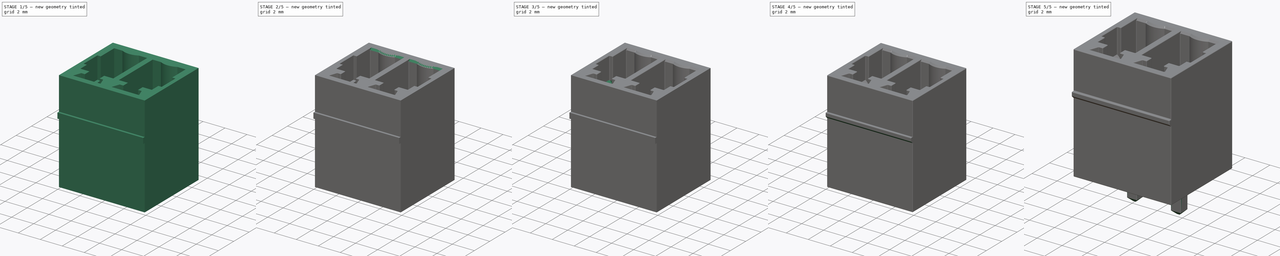
[diagram: build sequence overview — one tinted view per stage of 5, left to right]
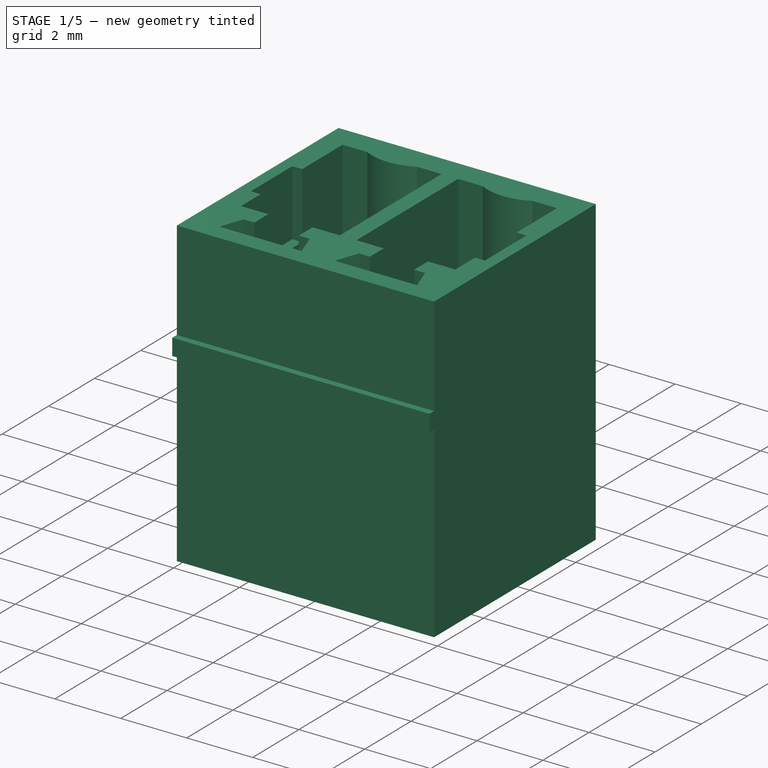
[diagram: stage 1 of 5 — iso view after this stage's code; geometry added in this stage tinted green]
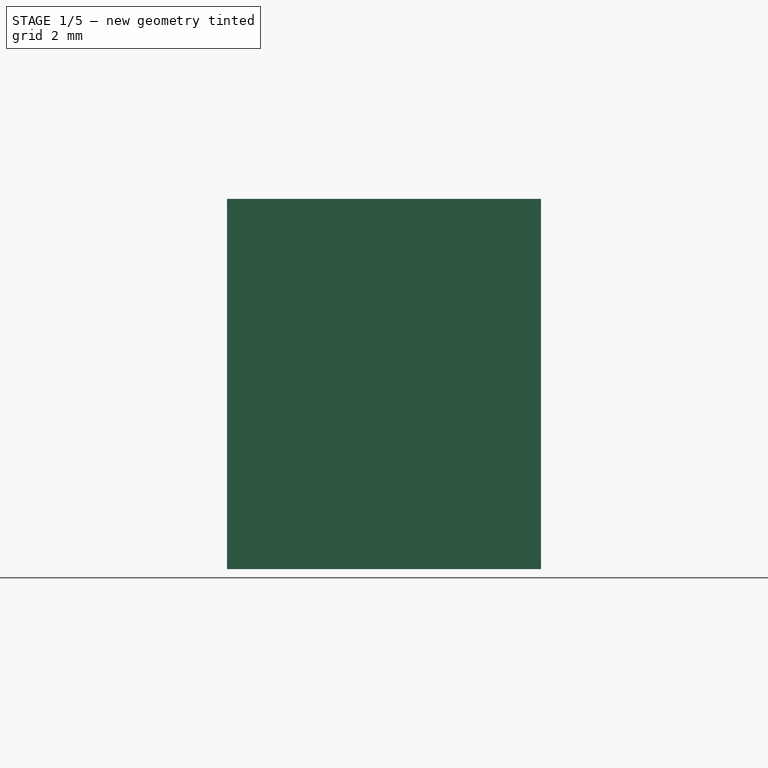
[diagram: stage 1 of 5 — front view after this stage's code; geometry added in this stage tinted green]
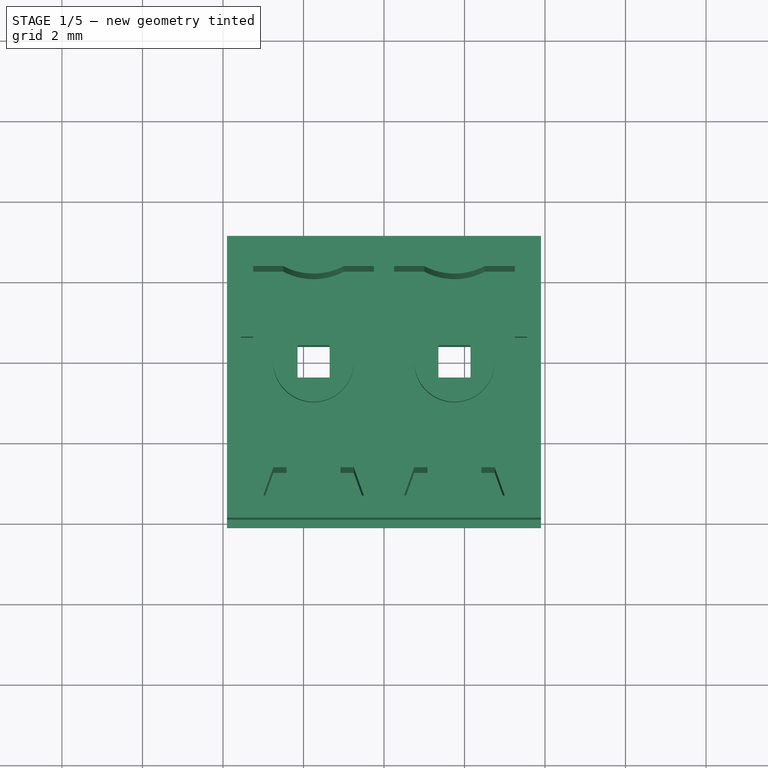
[diagram: stage 1 of 5 — top view after this stage's code; geometry added in this stage tinted green]
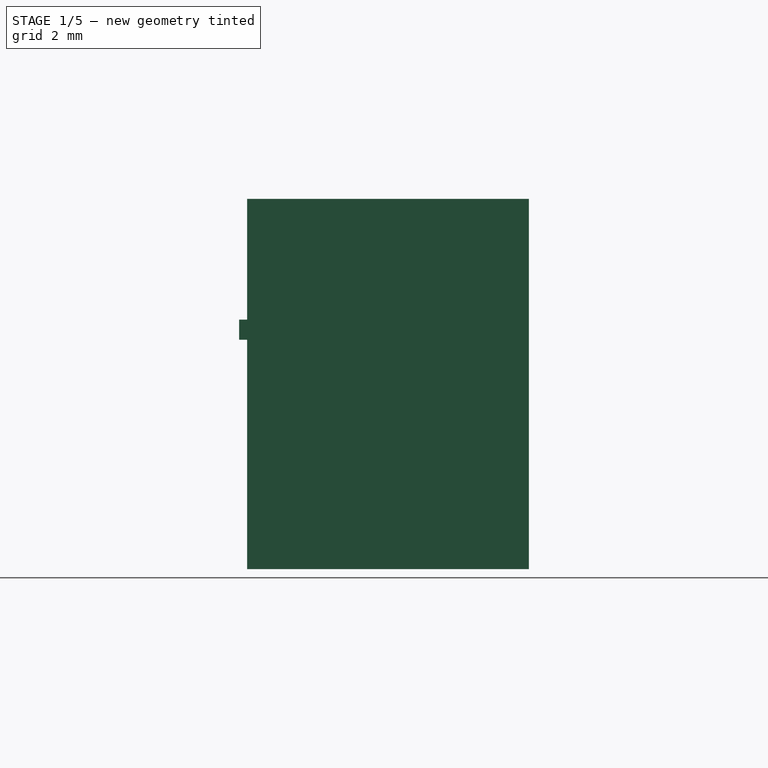
[diagram: stage 1 of 5 — right view after this stage's code; geometry added in this stage tinted green]
FCSTD DOCUMENT  (FreeCAD 0.15R4671 (Git))
Label: DEGSON_15EDGVC-3.5-03P-14-00A
License: All rights reserved
LicenseURL: http://en.wikipedia.org/wiki/All_rights_reserved
objects: PartDesign::Fillet×27, PartDesign::Chamfer×10, Sketcher::SketchObject×7, PartDesign::Pad×5, PartDesign::Pocket×2, PartDesign::LinearPattern×2, Image::ImagePlane×1, Part::Cut×1
note: 61 computed .brp shape members not serialized (recipe doc carries the construction recipe); baked Part::Feature solids carry a one-line shape summary decoded from their .brp

FEATURE [Sketcher::SketchObject] Sketch001
  Placement = pos=(0,0,0) rot=(1,0,0;3.14159rad)
  sketch-geometry (4):
    g0: LineSegment StartX=-3.9 StartY=4 StartZ=0 EndX=3.9 EndY=4 EndZ=0
    g1: LineSegment StartX=3.9 StartY=4 StartZ=0 EndX=3.9 EndY=-3 EndZ=0
    g2: LineSegment StartX=3.9 StartY=-3 StartZ=0 EndX=-3.9 EndY=-3 EndZ=0
    g3: LineSegment StartX=-3.9 StartY=-3 StartZ=0 EndX=-3.9 EndY=4 EndZ=0
  constraints (12):
    c: Coincident(g0,g1)
    c: Coincident(g1,g2)
    c: Coincident(g2,g3)
    c: Coincident(g3,g0)
    c: Horizontal(g0)
    c: Horizontal(g2)
    c: Vertical(g1)
    c: Vertical(g3)
    c: DistanceY(g3) = 7
    c: DistanceY(g-1,g2) = -3
    c: DistanceX(g0) = 7.8
    c: DistanceX(g-1,g0) = -3.9
FEATURE [PartDesign::Pad] Pad001
  Length = 9.2
  Length2 = 100
  Placement = pos=(0,0,0) rot=(1,0,0;3.14159rad)
  Sketch = -> Sketch001
  Type = 0
FEATURE [Sketcher::SketchObject] Sketch002
  Support = -> Pad001 [Face5]
  sketch-geometry (14):
    g0: LineSegment StartX=-0.25 StartY=2.25 StartZ=0 EndX=-1 EndY=2.25 EndZ=0
    g1: LineSegment StartX=-2.5 StartY=2.25 StartZ=0 EndX=-3.25 EndY=2.25 EndZ=0
    g2: LineSegment StartX=-3.25 StartY=2.25 StartZ=0 EndX=-3.25 EndY=-2.15 EndZ=0
    g3: LineSegment StartX=-3.25 StartY=-2.15 StartZ=0 EndX=-2.42 EndY=-2.15 EndZ=0
    g4: LineSegment StartX=-2.42 StartY=-2.15 StartZ=0 EndX=-2.42 EndY=-2.75 EndZ=0
    g5: LineSegment StartX=-2.42 StartY=-2.75 StartZ=0 EndX=-2.75 EndY=-2.75 EndZ=0
    g6: LineSegment StartX=-2.75 StartY=-2.75 StartZ=0 EndX=-3 EndY=-3.45 EndZ=0
    g7: LineSegment StartX=-3 StartY=-3.45 StartZ=0 EndX=-0.5 EndY=-3.45 EndZ=0
    g8: LineSegment StartX=-0.5 StartY=-3.45 StartZ=0 EndX=-0.75 EndY=-2.75 EndZ=0
    g9: LineSegment StartX=-0.75 StartY=-2.75 StartZ=0 EndX=-1.08 EndY=-2.75 EndZ=0
    g10: LineSegment StartX=-1.08 StartY=-2.75 StartZ=0 EndX=-1.08 EndY=-2.15 EndZ=0
    g11: LineSegment StartX=-1.08 StartY=-2.15 StartZ=0 EndX=-0.25 EndY=-2.15 EndZ=0
    g12: LineSegment StartX=-0.25 StartY=-2.15 StartZ=0 EndX=-0.25 EndY=2.25 EndZ=0
    g13: ArcOfCircle CenterX=-1.75 CenterY=3.66333 CenterZ=0 NormalX=0 NormalY=0 NormalZ=1 Radius=1.6 StartAngle=4.22451 EndAngle=5.20026
  constraints (43):
    c: Horizontal(g0)
    c: Horizontal(g1)
    c: Equal(g1,g0)
    c: Coincident(g1,g2)
    c: Vertical(g2)
    c: Coincident(g2,g3)
    c: Horizontal(g3)
    c: Coincident(g3,g4)
    c: Vertical(g4)
    c: Coincident(g4,g5)
    c: Horizontal(g5)
    c: Coincident(g5,g6)
    c: Coincident(g6,g7)
    c: Horizontal(g7)
    c: Coincident(g8,g9)
    c: Horizontal(g9)
    c: Coincident(g9,g10)
    c: Vertical(g10)
    c: Coincident(g10,g11)
    c: Horizontal(g11)
    c: Coincident(g11,g12)
    c: Vertical(g12)
    c: Coincident(g0,g12)
    c: Equal(g11,g3)
    c: Equal(g2,g12)
    c: Equal(g10,g4)
    c: Equal(g5,g9)
    c: Coincident(g8,g7)
    c: Coincident(g13,g0)
    c: Coincident(g13,g1)
    c: DistanceX(g5,g8) = 2
    c: DistanceX(g7) = 2.5
    c: DistanceY(g6,g5) = 0.7
    c: DistanceX(g5) = -0.33
    c: DistanceY(g-1,g6) = -3.45
    c: DistanceX(g2,g11) = 3
    c: DistanceY(g2) = -4.4
    c: Radius(g13) = 1.6
    c: DistanceY(g4) = -0.6
    c: DistanceY(g-1,g0) = 2.25
    c: DistanceX(g0,g1) = -1.5
    c: Angle(g7,g6) = 1.22777
    c: DistanceX(g-1,g13) = -1.75
FEATURE [Image::ImagePlane] ImagePlane
  Placement = pos=(0,-0.55,0) rot=(0,0,1;0rad)
  XSize = 11.3
  YSize = 7
FEATURE [PartDesign::Pocket] Pocket
  Length = 8
  Placement = pos=(0,0,0) rot=(1,0,0;3.14159rad)
  Sketch = -> Sketch002
  Type = 0
FEATURE [PartDesign::LinearPattern] LinearPattern
  Direction = -> Sketch002 [H_Axis]
  Length = 3.5
  Occurrences = 2
  Originals = -> [Pocket]
  Placement = pos=(0,0,0) rot=(1,0,0;3.14159rad)
FEATURE [Sketcher::SketchObject] Sketch003
  Support = -> LinearPattern [Face4]
  sketch-geometry (8):
    g0: LineSegment StartX=-2.25 StartY=0.5 StartZ=0 EndX=-3.55 EndY=0.5 EndZ=0
    g1: LineSegment StartX=-3.55 StartY=0.5 StartZ=0 EndX=-3.55 EndY=-1.3 EndZ=0
    g2: LineSegment StartX=-3.55 StartY=-1.3 StartZ=0 EndX=-2.25 EndY=-1.3 EndZ=0
    g3: LineSegment StartX=-2.25 StartY=-1.3 StartZ=0 EndX=-2.25 EndY=0.5 EndZ=0
    g4: LineSegment StartX=3.55 StartY=0.5 StartZ=0 EndX=2.25 EndY=0.5 EndZ=0
    g5: LineSegment StartX=2.25 StartY=0.5 StartZ=0 EndX=2.25 EndY=-1.3 EndZ=0
    g6: LineSegment StartX=2.25 StartY=-1.3 StartZ=0 EndX=3.55 EndY=-1.3 EndZ=0
    g7: LineSegment StartX=3.55 StartY=-1.3 StartZ=0 EndX=3.55 EndY=0.5 EndZ=0
  constraints (24):
    c: Coincident(g0,g1)
    c: Coincident(g1,g2)
    c: Coincident(g2,g3)
    c: Coincident(g3,g0)
    c: Horizontal(g0)
    c: Horizontal(g2)
    c: Vertical(g1)
    c: Vertical(g3)
    c: DistanceX(g2) = 1.3
    c: DistanceY(g1) = -1.8
    c: DistanceY(g-1,g0) = 0.5
    c: DistanceX(g-1,g2) = -2.25
    c: Coincident(g4,g5)
    c: Coincident(g5,g6)
    c: Coincident(g6,g7)
    c: Coincident(g7,g4)
    c: Horizontal(g4)
    c: Horizontal(g6)
    c: Vertical(g5)
    c: Vertical(g7)
    c: DistanceY(g-1,g4) = 0.5
    c: DistanceX(g-1,g5) = 2.25
    c: Equal(g4,g2)
    c: Equal(g7,g1)
FEATURE [PartDesign::Pocket] Pocket001
  Length = 2
  Placement = pos=(0,0,0) rot=(1,0,0;3.14159rad)
  Sketch = -> Sketch003
  Type = 0
FEATURE [Sketcher::SketchObject] Sketch005
  Placement = pos=(0,0,-8) rot=(0,0,1;0rad)
  Support = -> Pocket001 [Face41]
  sketch-geometry (1):
    g0: Circle CenterX=-1.75 CenterY=0 CenterZ=0 NormalX=0 NormalY=0 NormalZ=1 Radius=1
  constraints (3):
    c: PointOnObject(g0,g-1)
    c: DistanceX(g-1,g0) = -1.75
    c: Radius(g0) = 1
FEATURE [PartDesign::Pad] Pad003
  Length = 1.2
  Length2 = 100
  Placement = pos=(0,0,0) rot=(1,0,0;3.14159rad)
  Sketch = -> Sketch005
  Type = 0
FEATURE [PartDesign::LinearPattern] LinearPattern001
  Direction = -> Sketch005 [H_Axis]
  Length = 3.5
  Occurrences = 2
  Originals = -> [Pad003]
  Placement = pos=(0,0,0) rot=(1,0,0;3.14159rad)
FEATURE [Sketcher::SketchObject] Sketch006
  Placement = pos=(0,0,-1.5) rot=(1,0,0;3.14159rad)
  sketch-geometry (8):
    g0: LineSegment StartX=-2.15 StartY=0.4 StartZ=0 EndX=-1.35 EndY=0.4 EndZ=0
    g1: LineSegment StartX=-1.35 StartY=0.4 StartZ=0 EndX=-1.35 EndY=-0.4 EndZ=0
    g2: LineSegment StartX=-1.35 StartY=-0.4 StartZ=0 EndX=-2.15 EndY=-0.4 EndZ=0
    g3: LineSegment StartX=-2.15 StartY=-0.4 StartZ=0 EndX=-2.15 EndY=0.4 EndZ=0
    g4: LineSegment StartX=1.35 StartY=0.4 StartZ=0 EndX=2.15 EndY=0.4 EndZ=0
    g5: LineSegment StartX=2.15 StartY=0.4 StartZ=0 EndX=2.15 EndY=-0.4 EndZ=0
    g6: LineSegment StartX=2.15 StartY=-0.4 StartZ=0 EndX=1.35 EndY=-0.4 EndZ=0
    g7: LineSegment StartX=1.35 StartY=-0.4 StartZ=0 EndX=1.35 EndY=0.4 EndZ=0
  constraints (24):
    c: Coincident(g1,g2)
    c: Coincident(g2,g3)
    c: Coincident(g3,g0)
    c: Horizontal(g0)
    c: Horizontal(g2)
    c: Vertical(g3)
    c: Equal(g0,g1)
    c: DistanceX(g0) = 0.8
    c: Coincident(g0,g1)
    c: Vertical(g1)
    c: DistanceY(g-1,g0) = 0.4
    c: DistanceX(g-1,g1) = -1.35
    c: Coincident(g4,g5)
    c: Coincident(g5,g6)
    c: Coincident(g6,g7)
    c: Coincident(g7,g4)
    c: Horizontal(g4)
    c: Horizontal(g6)
    c: Vertical(g5)
    c: Vertical(g7)
    c: Equal(g4,g5)
    c: DistanceX(g4) = 0.8
    c: DistanceY(g-1,g4) = 0.4
    c: DistanceX(g6,g1) = -2.7
FEATURE [PartDesign::Pad] Pad004
  Length = 10.4
  Length2 = 100
  Placement = pos=(0,0,-1.5) rot=(1,0,0;3.14159rad)
  Sketch = -> Sketch006
  Type = 0
FEATURE [Part::Cut] Cut
  Base = -> LinearPattern001
  Tool = -> Pad004
FEATURE [Sketcher::SketchObject] Sketch007
  Placement = pos=(0,-4,0) rot=(1,0,0;1.5708rad)
  Support = -> Cut [Face1]
  sketch-geometry (4):
    g0: LineSegment StartX=-3.9 StartY=-3 StartZ=0 EndX=3.9 EndY=-3 EndZ=0
    g1: LineSegment StartX=3.9 StartY=-3 StartZ=0 EndX=3.9 EndY=-3.5 EndZ=0
    g2: LineSegment StartX=3.9 StartY=-3.5 StartZ=0 EndX=-3.9 EndY=-3.5 EndZ=0
    g3: LineSegment StartX=-3.9 StartY=-3.5 StartZ=0 EndX=-3.9 EndY=-3 EndZ=0
  constraints (12):
    c: Coincident(g0,g1)
    c: Coincident(g1,g2)
    c: Coincident(g2,g3)
    c: Coincident(g3,g0)
    c: Horizontal(g0)
    c: Horizontal(g2)
    c: Vertical(g1)
    c: Vertical(g3)
    c: DistanceX(g0) = 7.8
    c: Symmetric(g0,g0,g-2)
    c: DistanceY(g-1,g0) = -3
    c: DistanceY(g3) = 0.5
FEATURE [PartDesign::Pad] Pad005
  Length = 0.2
  Length2 = 100
  Sketch = -> Sketch007
  Type = 0
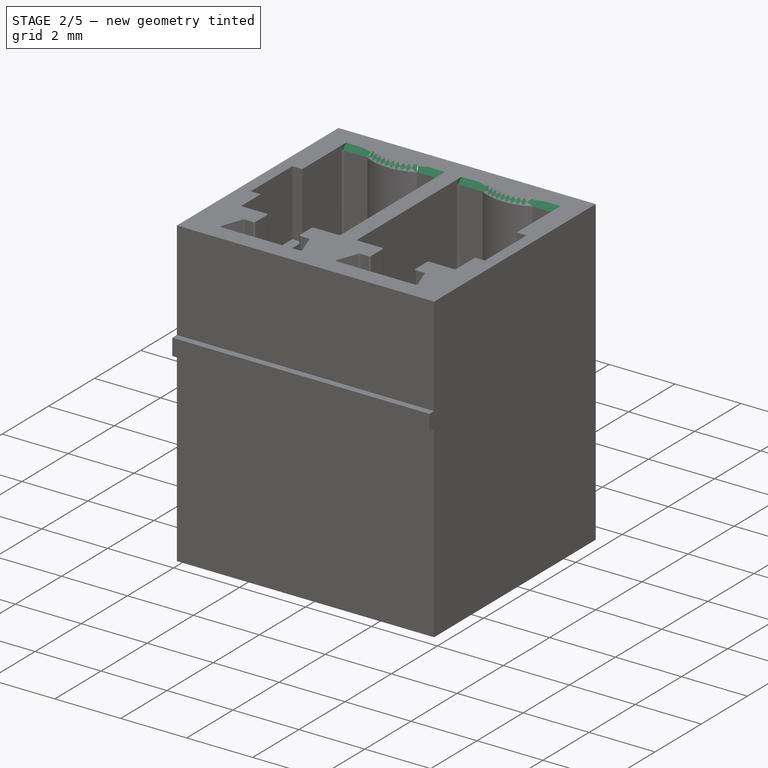
[diagram: stage 2 of 5 — iso view after this stage's code; geometry added in this stage tinted green]
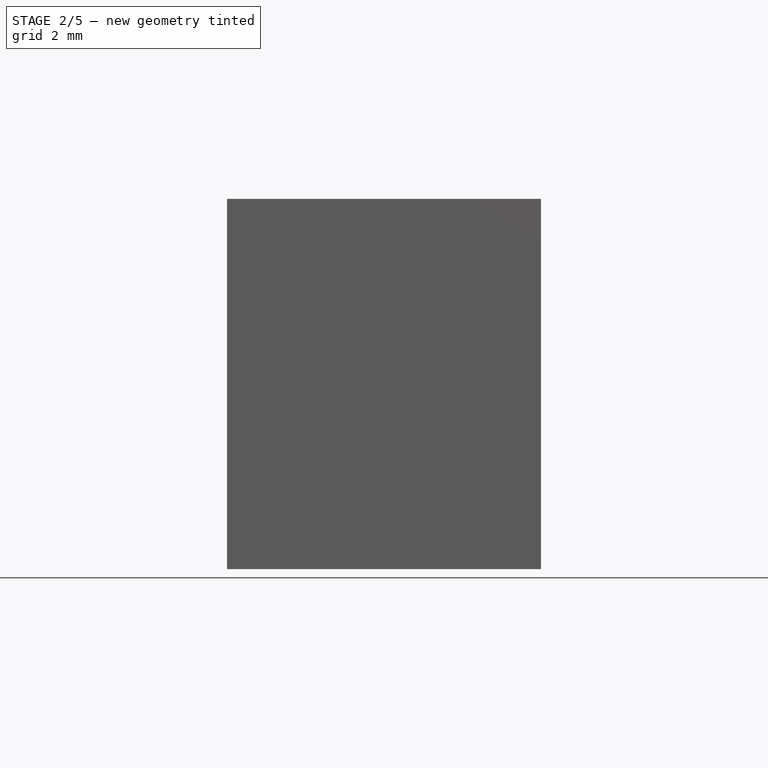
[diagram: stage 2 of 5 — front view after this stage's code; geometry added in this stage tinted green]
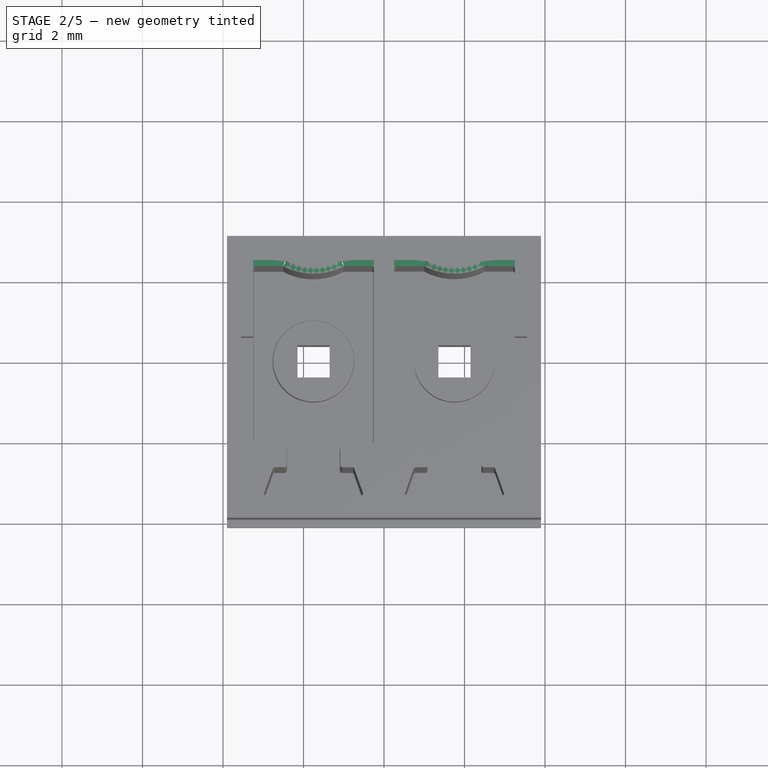
[diagram: stage 2 of 5 — top view after this stage's code; geometry added in this stage tinted green]
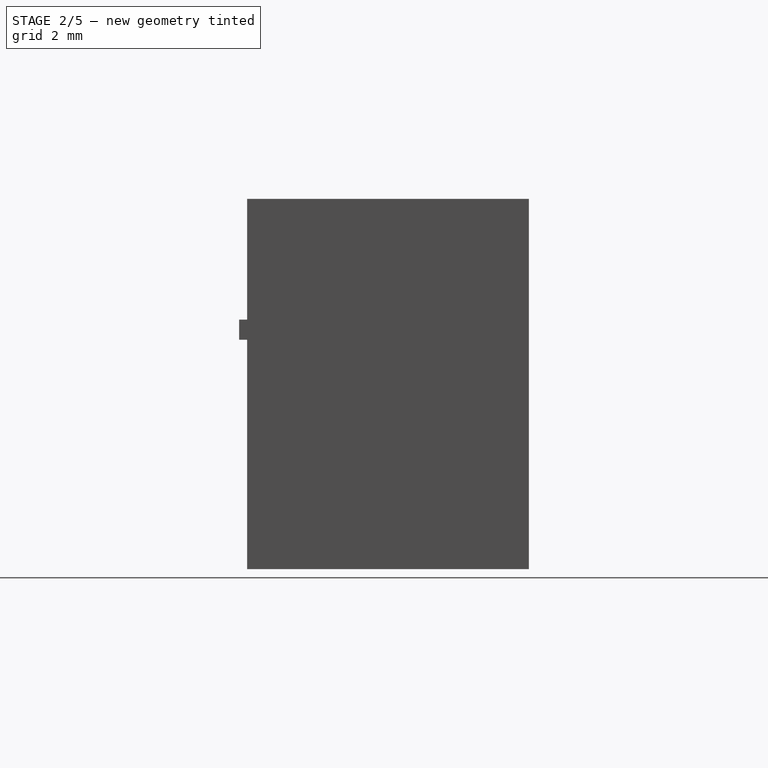
[diagram: stage 2 of 5 — right view after this stage's code; geometry added in this stage tinted green]
FEATURE [PartDesign::Chamfer] Chamfer004
  Base = -> Pad005 [Edge37,Edge21]
  Size = 0.15
FEATURE [PartDesign::Chamfer] Chamfer005
  Base = -> Chamfer004 [Edge44,Edge28]
  Size = 0.15
FEATURE [PartDesign::Chamfer] Chamfer006
  Base = -> Chamfer005 [Edge24,Edge2]
  Size = 0.15
FEATURE [PartDesign::Fillet] Fillet002
  Base = -> Chamfer006 [Edge59,Edge57,Edge73,Edge75]
  Radius = 0.05
FEATURE [PartDesign::Fillet] Fillet003
  Base = -> Fillet002 [Edge77,Edge75,Edge72,Edge67,Edge89,Edge86,Edge84,Edge79]
  Radius = 0.05
FEATURE [PartDesign::Fillet] Fillet004
  Base = -> Fillet003 [Edge149,Edge147,Edge161,Edge163]
  Radius = 0.05
FEATURE [PartDesign::Fillet] Fillet005
  Base = -> Fillet004 [Edge98,Edge96,Edge90,Edge87,Edge83,Edge80,Edge78,Edge72]
  Radius = 0.05
FEATURE [PartDesign::Fillet] Fillet006
  Base = -> Fillet005 [Edge146]
  Radius = 0.05
FEATURE [PartDesign::Fillet] Fillet007
  Base = -> Fillet006 [Edge89]
  Radius = 0.05
FEATURE [PartDesign::Fillet] Fillet008
  Base = -> Fillet007 [Edge21]
  Radius = 0.05
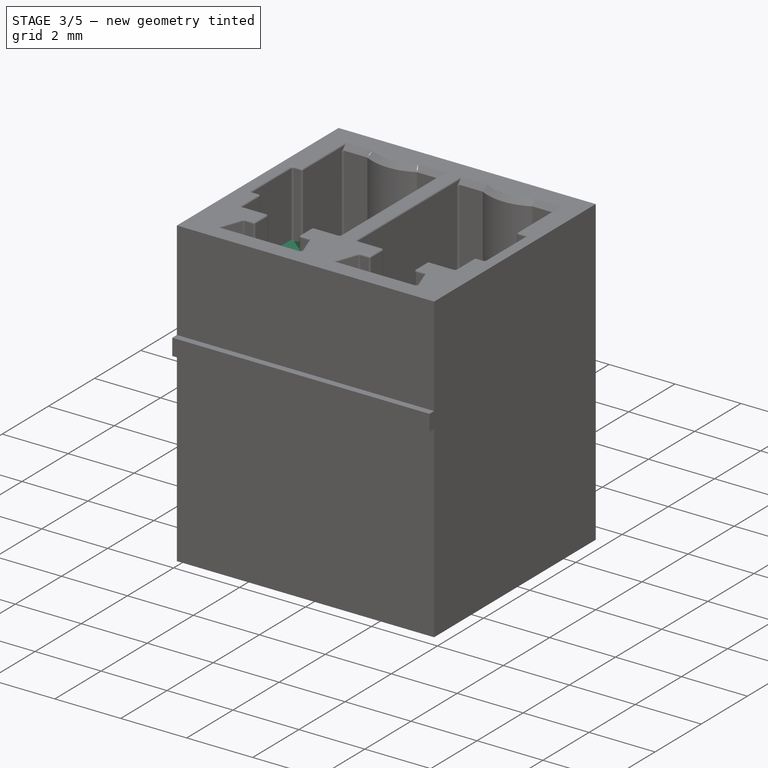
[diagram: stage 3 of 5 — iso view after this stage's code; geometry added in this stage tinted green]
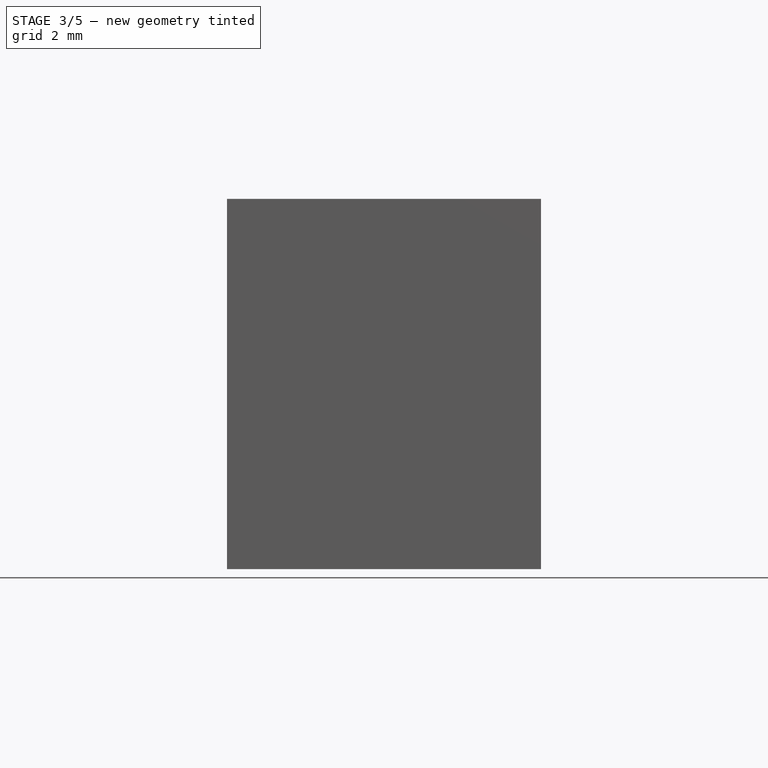
[diagram: stage 3 of 5 — front view after this stage's code; geometry added in this stage tinted green]
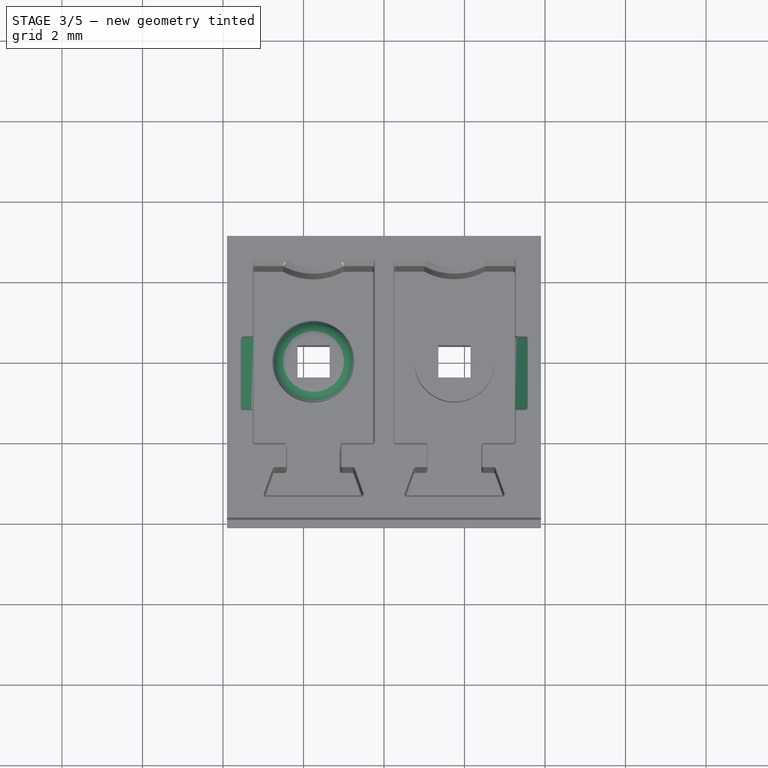
[diagram: stage 3 of 5 — top view after this stage's code; geometry added in this stage tinted green]
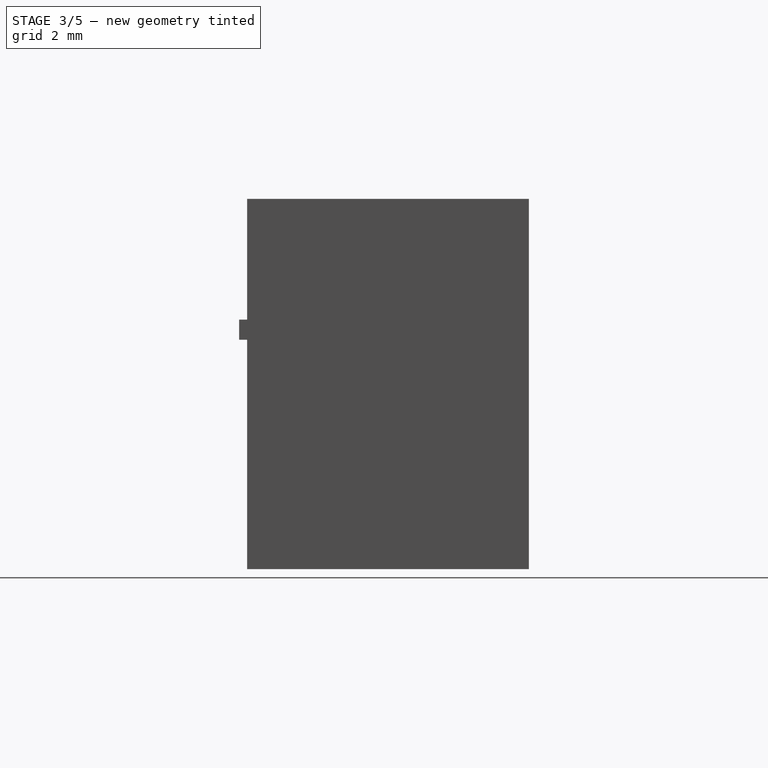
[diagram: stage 3 of 5 — right view after this stage's code; geometry added in this stage tinted green]
FEATURE [PartDesign::Fillet] Fillet009
  Base = -> Fillet008 [Edge75]
  Radius = 0.4
FEATURE [PartDesign::Chamfer] Chamfer007
  Base = -> Fillet009 [Edge117]
  Size = 0.299
FEATURE [PartDesign::Fillet] Fillet010
  Base = -> Chamfer007 [Edge7,Edge2]
  Radius = 0.05
FEATURE [PartDesign::Fillet] Fillet011
  Base = -> Fillet010 [Edge110,Edge113]
  Radius = 0.05
FEATURE [PartDesign::Fillet] Fillet012
  Base = -> Fillet011 [Edge32]
  Radius = 0.05
FEATURE [PartDesign::Chamfer] Chamfer008
  Base = -> Fillet012 [Edge195]
  Size = 0.299
FEATURE [PartDesign::Fillet] Fillet013
  Base = -> Chamfer008 [Edge2,Edge7]
  Radius = 0.05
FEATURE [PartDesign::Fillet] Fillet014
  Base = -> Fillet013 [Edge131,Edge130]
  Radius = 0.05
FEATURE [PartDesign::Fillet] Fillet015
  Base = -> Fillet014 [Edge25]
  Radius = 0.05
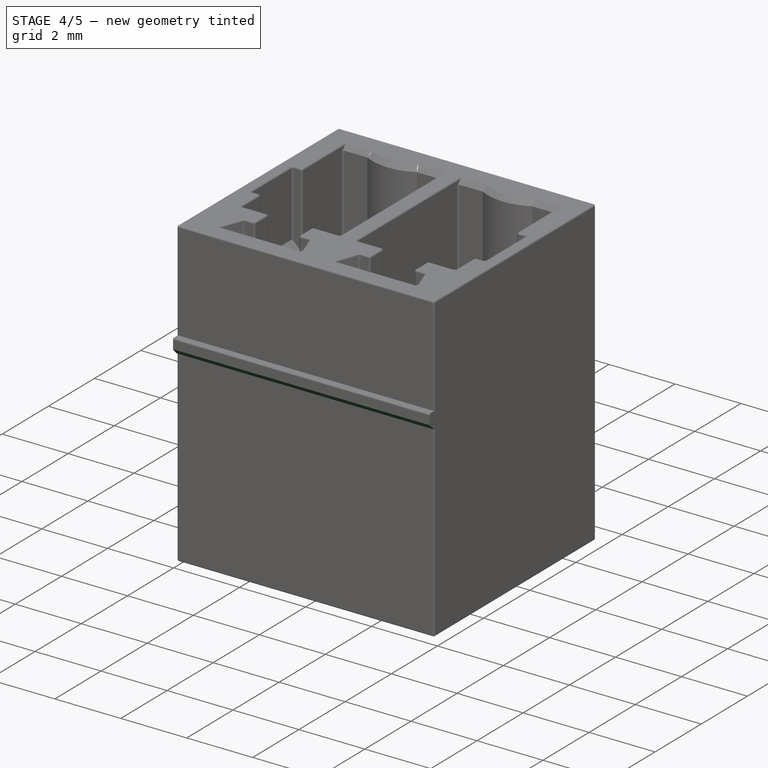
[diagram: stage 4 of 5 — iso view after this stage's code; geometry added in this stage tinted green]
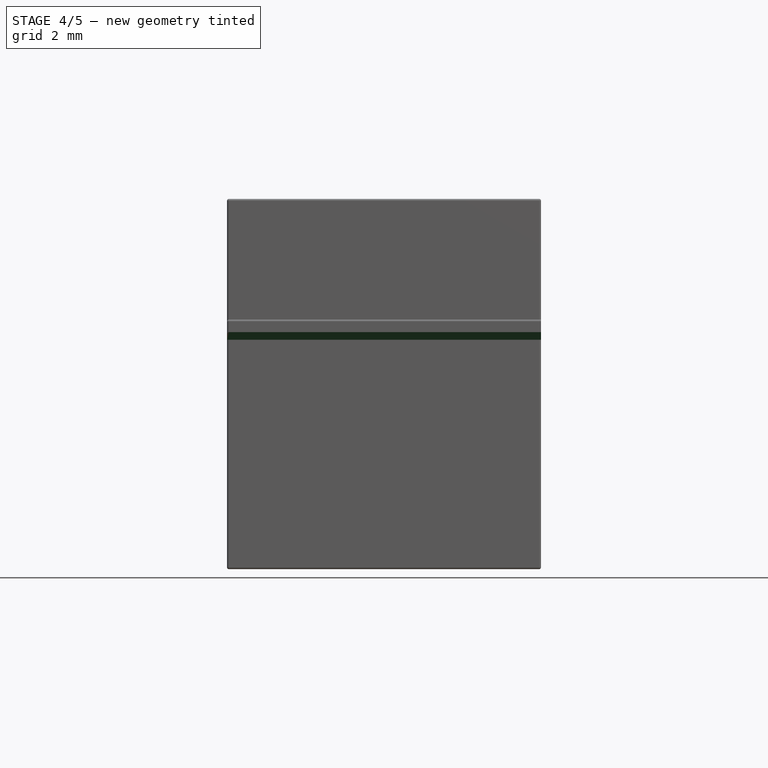
[diagram: stage 4 of 5 — front view after this stage's code; geometry added in this stage tinted green]
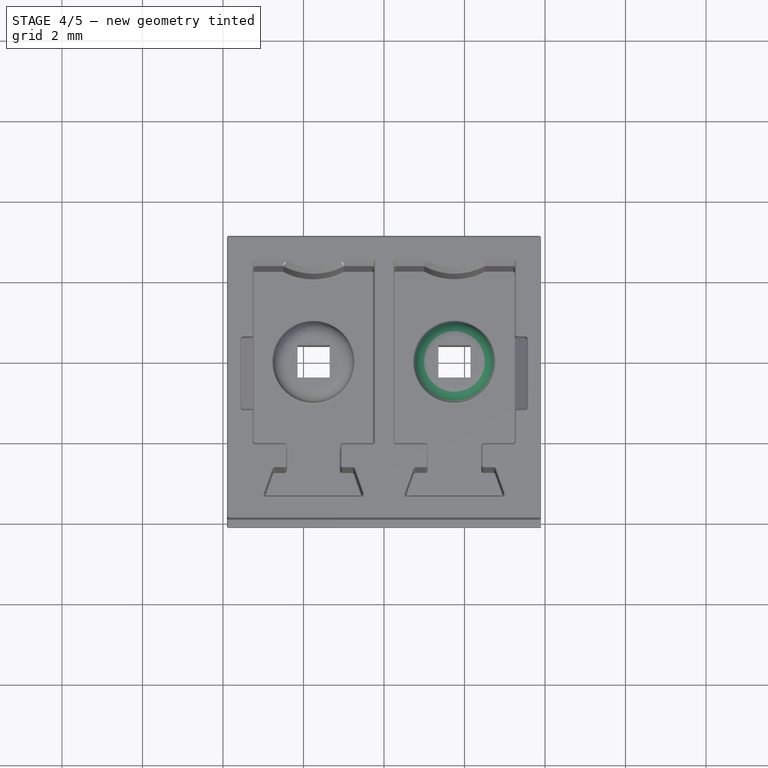
[diagram: stage 4 of 5 — top view after this stage's code; geometry added in this stage tinted green]
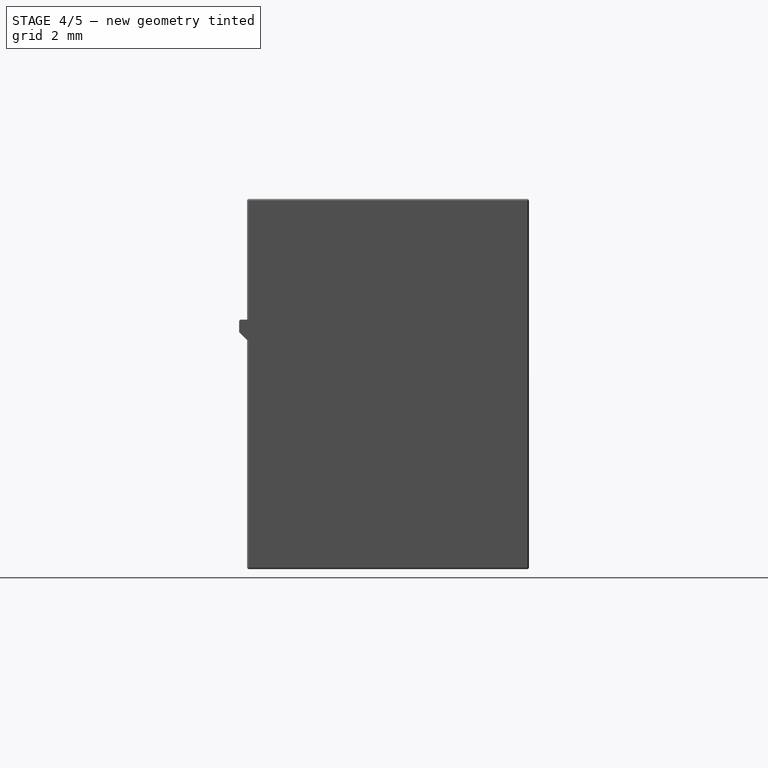
[diagram: stage 4 of 5 — right view after this stage's code; geometry added in this stage tinted green]
FEATURE [PartDesign::Fillet] Fillet016
  Base = -> Fillet015 [Edge423]
  Radius = 0.05
FEATURE [PartDesign::Fillet] Fillet017
  Base = -> Fillet016 [Edge97]
  Radius = 0.4
FEATURE [PartDesign::Fillet] Fillet018
  Base = -> Fillet017 [Edge208,Edge204]
  Radius = 0.05
FEATURE [PartDesign::Fillet] Fillet019
  Base = -> Fillet018 [Edge17,Edge31]
  Radius = 0.05
FEATURE [PartDesign::Fillet] Fillet020
  Base = -> Fillet019 [Edge7,Edge107]
  Radius = 0.05
FEATURE [PartDesign::Fillet] Fillet021
  Base = -> Fillet020 [Edge17,Edge13,Edge14,Edge1,Edge15,Edge16,Edge12,Edge11]
  Radius = 0.05
FEATURE [PartDesign::Fillet] Fillet022
  Base = -> Fillet021 [Edge26,Edge25,Edge6,Edge27,Edge30,Edge29,Edge23,Edge28]
  Radius = 0.05
FEATURE [PartDesign::Chamfer] Chamfer009
  Base = -> Fillet022 [Edge35]
  Size = 0.19
FEATURE [PartDesign::Fillet] Fillet023
  Base = -> Chamfer009 [Edge21]
  Radius = 0.05
FEATURE [PartDesign::Fillet] Fillet024
  Base = -> Fillet023 [Edge4]
  Radius = 0.05
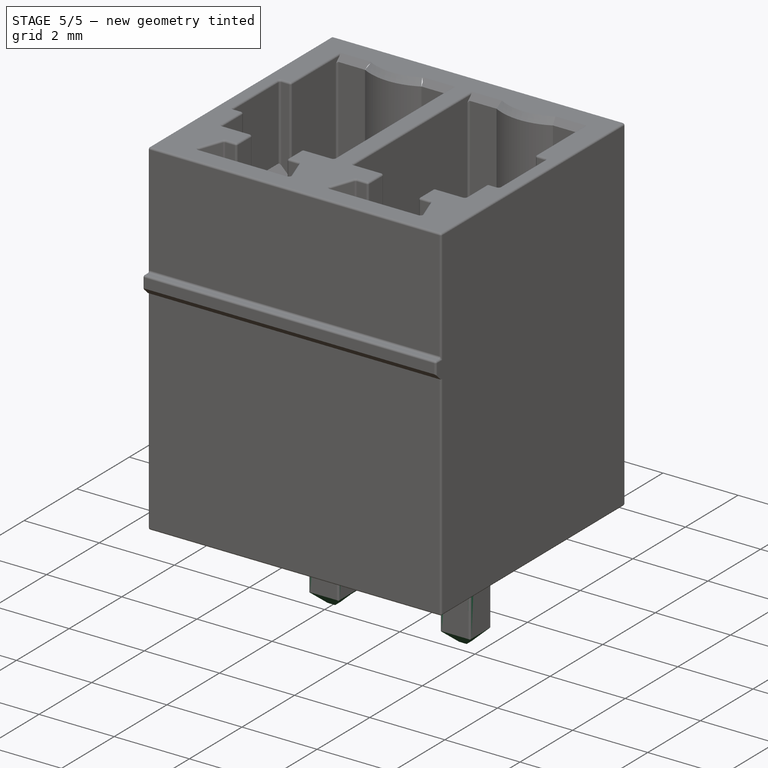
[diagram: stage 5 of 5 — iso view after this stage's code; geometry added in this stage tinted green]
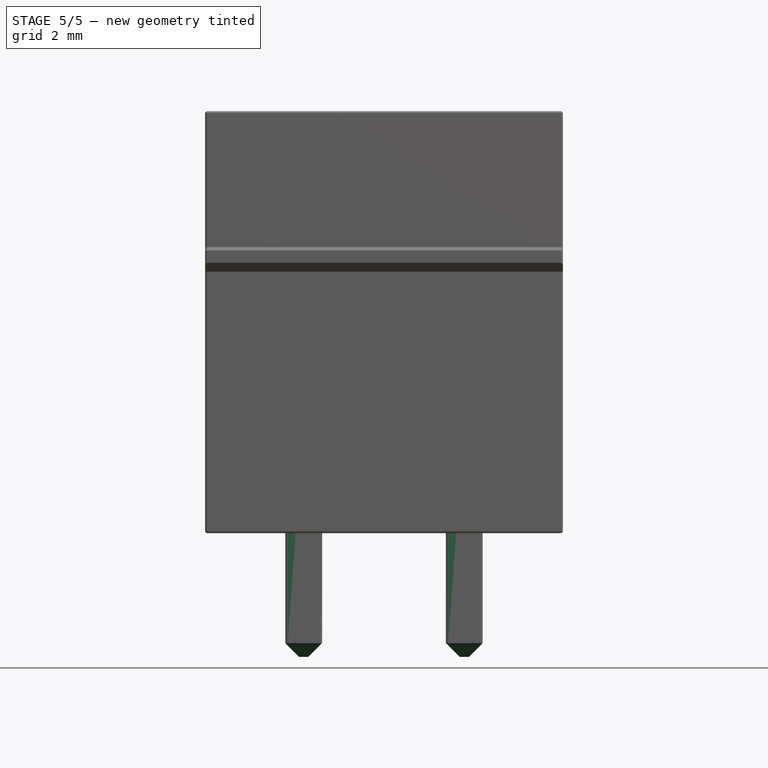
[diagram: stage 5 of 5 — front view after this stage's code; geometry added in this stage tinted green]
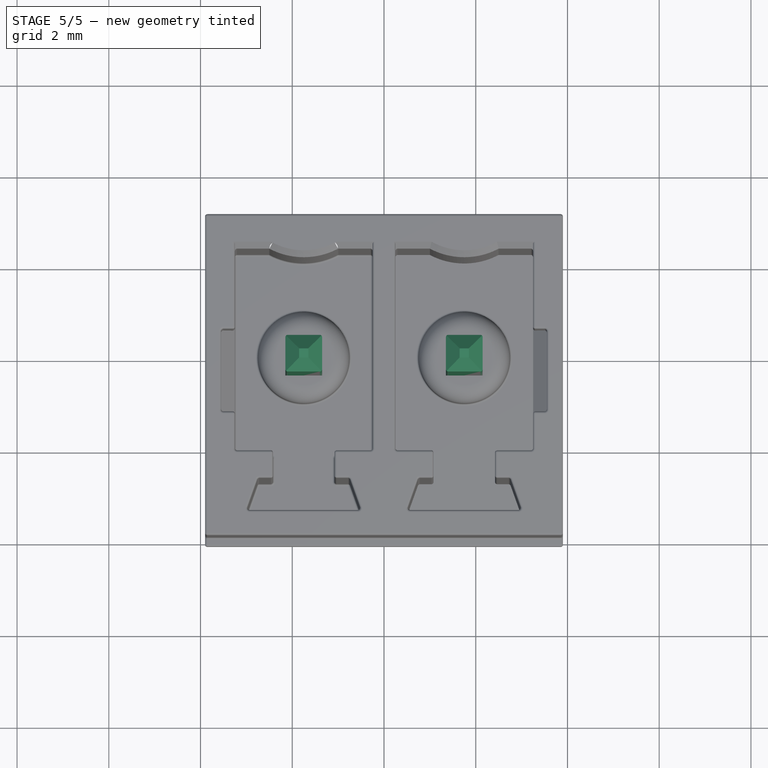
[diagram: stage 5 of 5 — top view after this stage's code; geometry added in this stage tinted green]
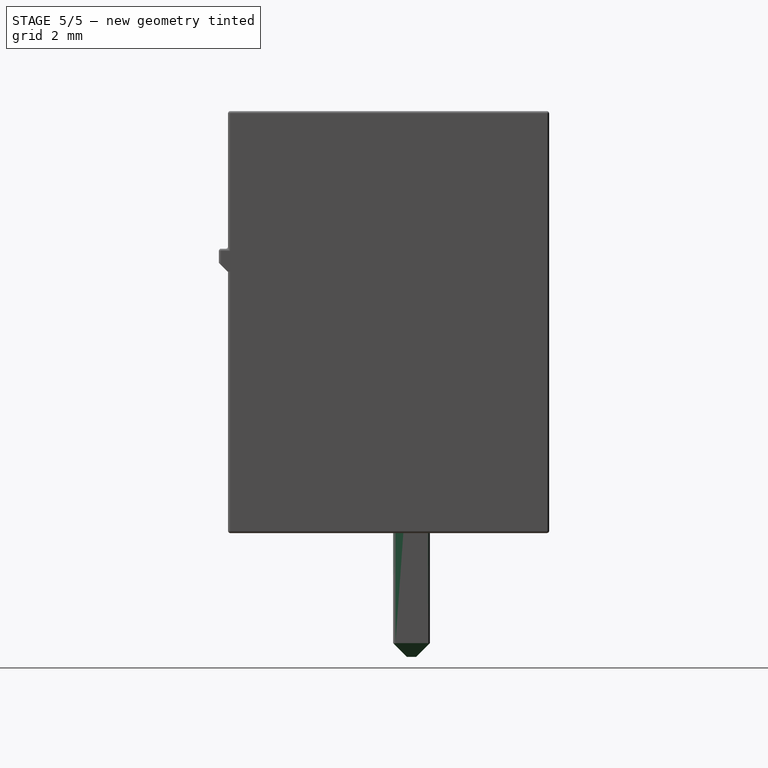
[diagram: stage 5 of 5 — right view after this stage's code; geometry added in this stage tinted green]
FEATURE [Sketcher::SketchObject] Sketch
  Placement = pos=(0,0,-1.5) rot=(1,0,0;3.14159rad)
  sketch-geometry (8):
    g0: LineSegment StartX=-2.15 StartY=0.4 StartZ=0 EndX=-1.35 EndY=0.4 EndZ=0
    g1: LineSegment StartX=-1.35 StartY=0.4 StartZ=0 EndX=-1.35 EndY=-0.4 EndZ=0
    g2: LineSegment StartX=-1.35 StartY=-0.4 StartZ=0 EndX=-2.15 EndY=-0.4 EndZ=0
    g3: LineSegment StartX=-2.15 StartY=-0.4 StartZ=0 EndX=-2.15 EndY=0.4 EndZ=0
    g4: LineSegment StartX=1.35 StartY=0.4 StartZ=0 EndX=2.15 EndY=0.4 EndZ=0
    g5: LineSegment StartX=2.15 StartY=0.4 StartZ=0 EndX=2.15 EndY=-0.4 EndZ=0
    g6: LineSegment StartX=2.15 StartY=-0.4 StartZ=0 EndX=1.35 EndY=-0.4 EndZ=0
    g7: LineSegment StartX=1.35 StartY=-0.4 StartZ=0 EndX=1.35 EndY=0.4 EndZ=0
  constraints (24):
    c: Coincident(g1,g2)
    c: Coincident(g2,g3)
    c: Coincident(g3,g0)
    c: Horizontal(g0)
    c: Horizontal(g2)
    c: Vertical(g3)
    c: Equal(g0,g1)
    c: DistanceX(g0) = 0.8
    c: Coincident(g0,g1)
    c: Vertical(g1)
    c: DistanceY(g-1,g0) = 0.4
    c: DistanceX(g-1,g1) = -1.35
    c: Coincident(g4,g5)
    c: Coincident(g5,g6)
    c: Coincident(g6,g7)
    c: Coincident(g7,g4)
    c: Horizontal(g4)
    c: Horizontal(g6)
    c: Vertical(g5)
    c: Vertical(g7)
    c: Equal(g4,g5)
    c: DistanceX(g4) = 0.8
    c: DistanceY(g-1,g4) = 0.4
    c: DistanceX(g6,g1) = -2.7
FEATURE [PartDesign::Pad] Pad
  Length = 10.4
  Length2 = 100
  Placement = pos=(0,0,-1.5) rot=(1,0,0;3.14159rad)
  Sketch = -> Sketch
  Type = 0
FEATURE [PartDesign::Chamfer] Chamfer
  Base = -> Pad [Edge3,Edge6,Edge11,Edge9]
  Placement = pos=(0,0,-1.5) rot=(1,0,0;3.14159rad)
  Size = 0.3
FEATURE [PartDesign::Chamfer] Chamfer001
  Base = -> Chamfer [Edge26,Edge23,Edge31,Edge29]
  Placement = pos=(0,0,-1.5) rot=(1,0,0;3.14159rad)
  Size = 0.3
FEATURE [PartDesign::Chamfer] Chamfer002
  Base = -> Chamfer001 [Edge23,Edge27,Edge32,Edge31]
  Placement = pos=(0,0,-1.5) rot=(1,0,0;3.14159rad)
  Size = 0.3
FEATURE [PartDesign::Chamfer] Chamfer003
  Base = -> Chamfer002 [Edge31,Edge35,Edge40,Edge39]
  Placement = pos=(0,0,-1.5) rot=(1,0,0;3.14159rad)
  Size = 0.3
FEATURE [PartDesign::Fillet] Fillet
  Base = -> Chamfer003 [Edge29,Edge32,Edge33,Edge44]
  Placement = pos=(0,0,-1.5) rot=(1,0,0;3.14159rad)
  Radius = 0.05
FEATURE [PartDesign::Fillet] Fillet001  label="Contacts"
  Base = -> Fillet [Edge53,Edge64,Edge52,Edge49]
  Placement = pos=(0,0,-1.5) rot=(1,0,0;3.14159rad)
  Radius = 0.05
FEATURE [PartDesign::Fillet] Fillet025
  Base = -> Fillet024 [Edge44]
  Radius = 0.05
FEATURE [PartDesign::Fillet] Fillet026  label="Modul"
  Base = -> Fillet025 [Edge77]
  Radius = 0.05
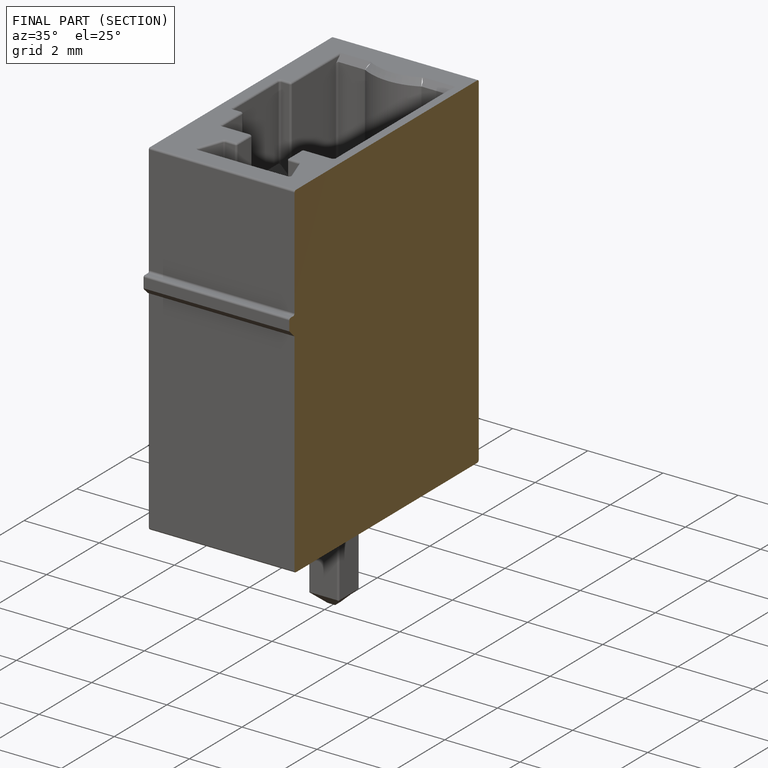
[diagram: finished part — half-section view (interior)]
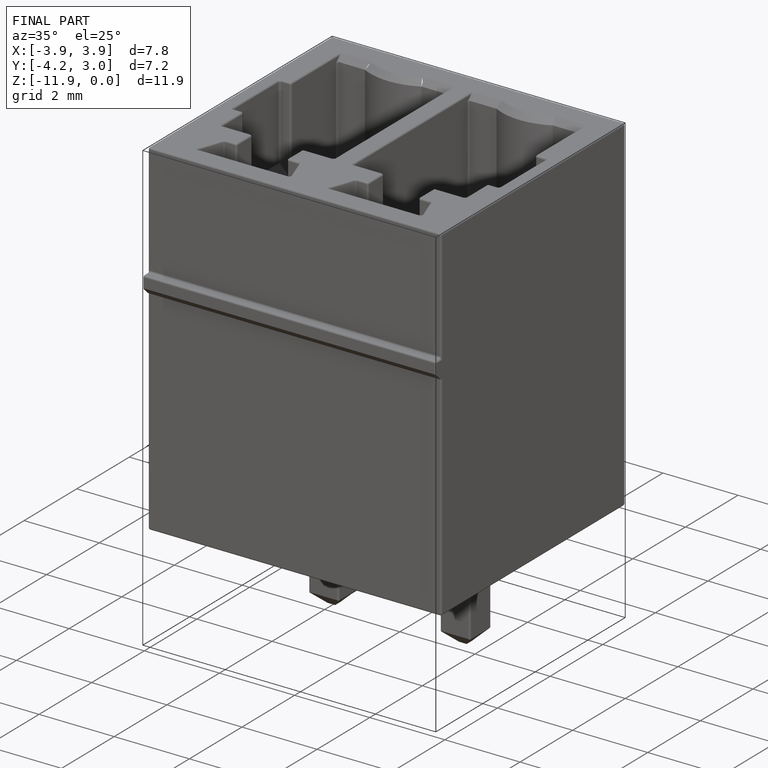
[diagram: finished part — iso view with bounding-box wireframe]
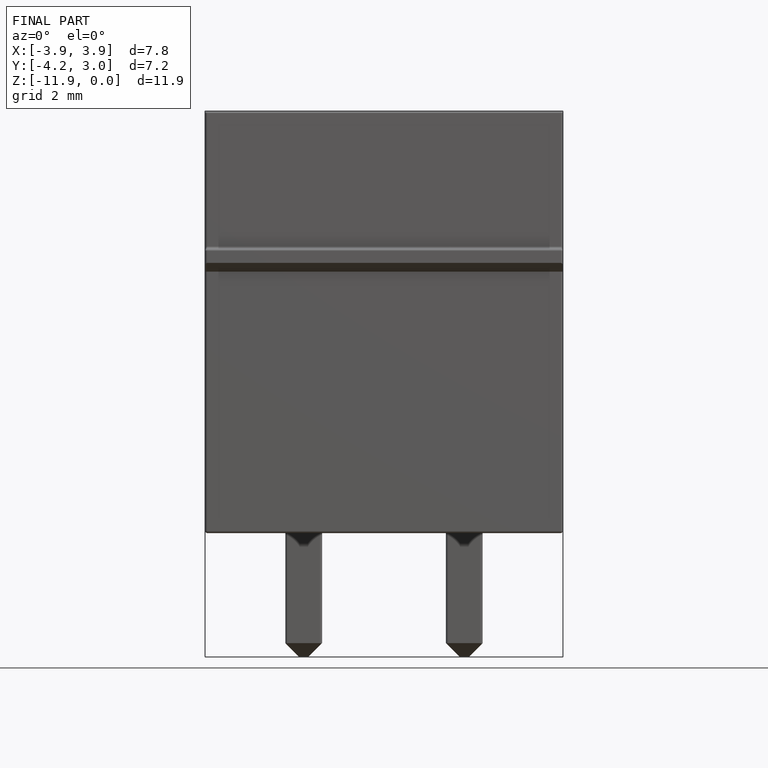
[diagram: finished part — front view with bounding-box wireframe]
